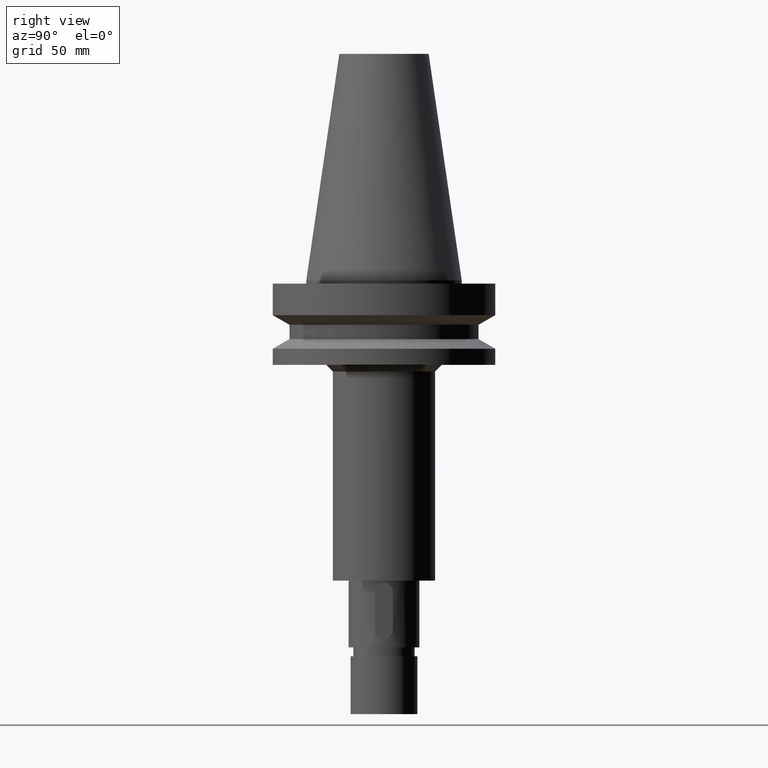
[diagram: clean part render]
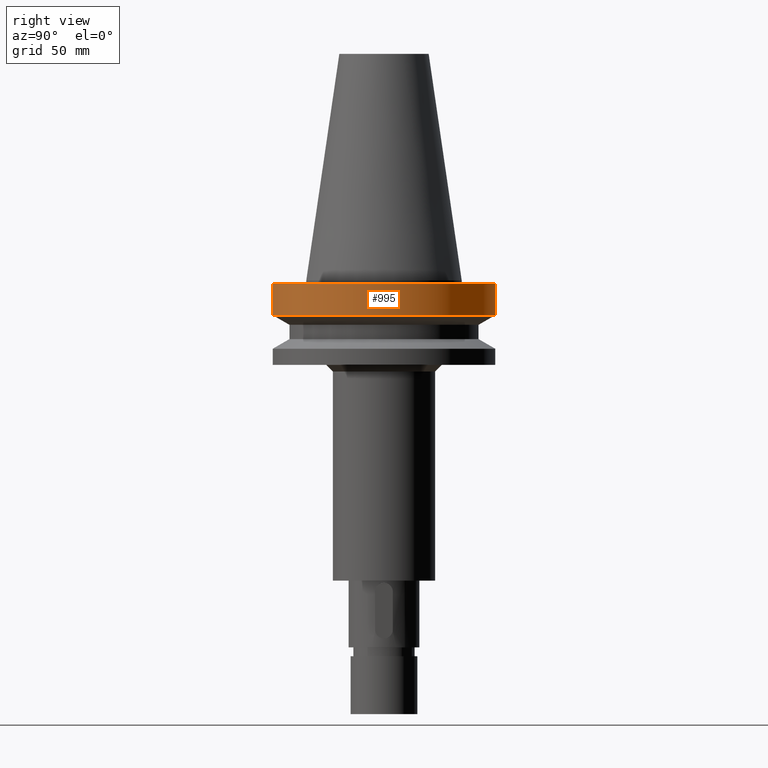
[diagram: same view with one face highlighted and labeled with its STEP entity id]
A machine part, right view. The second image highlights one B-rep face of the part: STEP entity #995.
In plain terms, the highlighted cylindrical surface (partial cylindrical patch) has radius 50 mm, axis along (0, 0, -1).
Its self-contained STEP definition (entity closure, byte-faithful):
#170=CARTESIAN_POINT('',(0.E0,2.653074825673E-14,-1.5E0));
#171=DIRECTION('',(0.E0,0.E0,-1.E0));
#172=DIRECTION('',(0.E0,1.E0,0.E0));
#173=AXIS2_PLACEMENT_3D('',#170,#171,#172);
#202=DIRECTION('',(0.E0,-1.605441053570E-14,-1.E0));
#203=VECTOR('',#202,1.416269223573E1);
#204=CARTESIAN_POINT('',(0.E0,5.E1,-1.5E0));
#205=LINE('',#204,#203);
#209=DIRECTION('',(0.E0,1.555271020646E-14,-1.E0));
#210=VECTOR('',#209,1.416269223573E1);
#211=CARTESIAN_POINT('',(0.E0,-5.E1,-1.5E0));
#212=LINE('',#211,#210);
#254=CARTESIAN_POINT('',(0.E0,1.006319759054E-14,-1.566269223573E1));
#255=DIRECTION('',(0.E0,0.E0,1.E0));
#256=DIRECTION('',(0.E0,-1.E0,0.E0));
#257=AXIS2_PLACEMENT_3D('',#254,#255,#256);
#730=CARTESIAN_POINT('',(0.E0,5.E1,-1.5E0));
#731=CARTESIAN_POINT('',(0.E0,-5.E1,-1.5E0));
#732=VERTEX_POINT('',#730);
#733=VERTEX_POINT('',#731);
#734=CARTESIAN_POINT('',(0.E0,5.E1,-1.566269223573E1));
#735=VERTEX_POINT('',#734);
#736=CARTESIAN_POINT('',(1.224646799147E-14,-5.E1,-1.566269223573E1));
#737=VERTEX_POINT('',#736);
#981=CARTESIAN_POINT('',(0.E0,2.653074825673E-14,1.1664E2));
#982=DIRECTION('',(0.E0,0.E0,-1.E0));
#983=DIRECTION('',(0.E0,-1.E0,0.E0));
#984=AXIS2_PLACEMENT_3D('',#981,#982,#983);
#985=CYLINDRICAL_SURFACE('',#984,5.E1);
#987=ORIENTED_EDGE('',*,*,#986,.T.);
#989=ORIENTED_EDGE('',*,*,#988,.F.);
#991=ORIENTED_EDGE('',*,*,#990,.F.);
#992=ORIENTED_EDGE('',*,*,#970,.F.);
#993=EDGE_LOOP('',(#987,#989,#991,#992));
#994=FACE_OUTER_BOUND('',#993,.F.);
#174=CIRCLE('',#173,5.E1);
#258=CIRCLE('',#257,5.E1);
#970=EDGE_CURVE('',#732,#733,#174,.T.);
#986=EDGE_CURVE('',#732,#735,#205,.T.);
#988=EDGE_CURVE('',#737,#735,#258,.T.);
#990=EDGE_CURVE('',#733,#737,#212,.T.);
#995=ADVANCED_FACE('',(#994),#985,.T.);